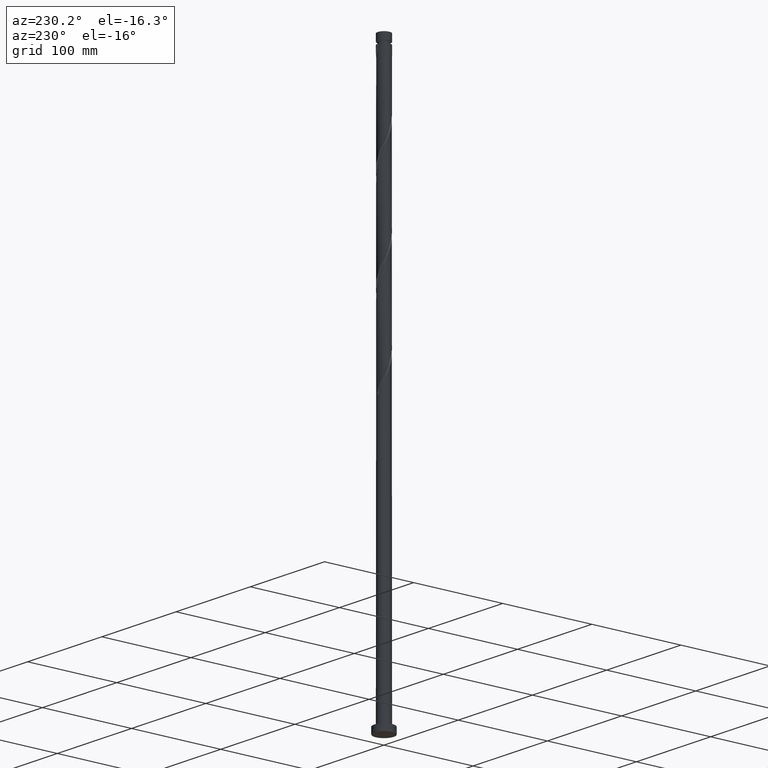
[diagram: clean part render]
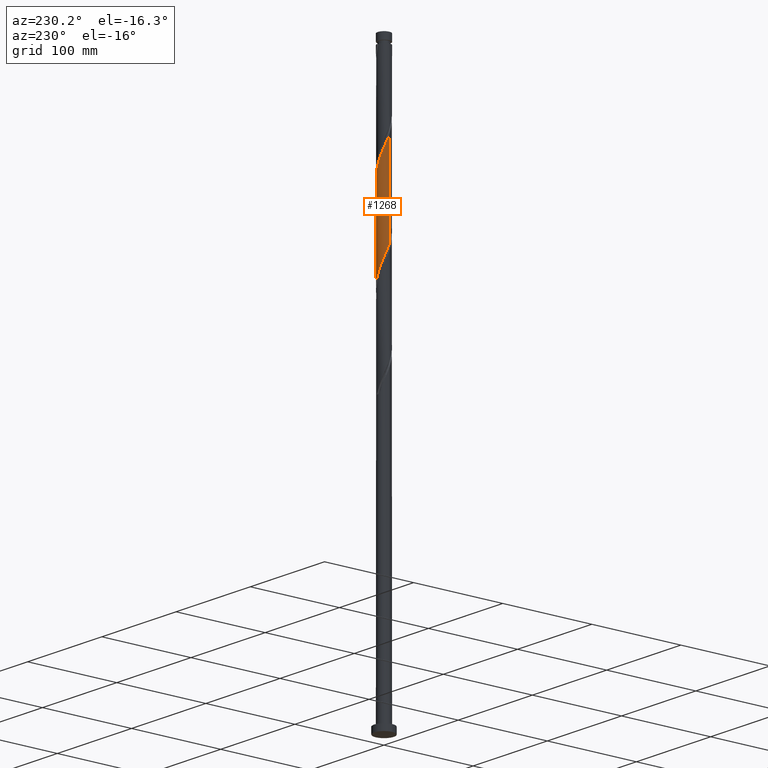
[diagram: same view with one face highlighted and labeled with its STEP entity id]
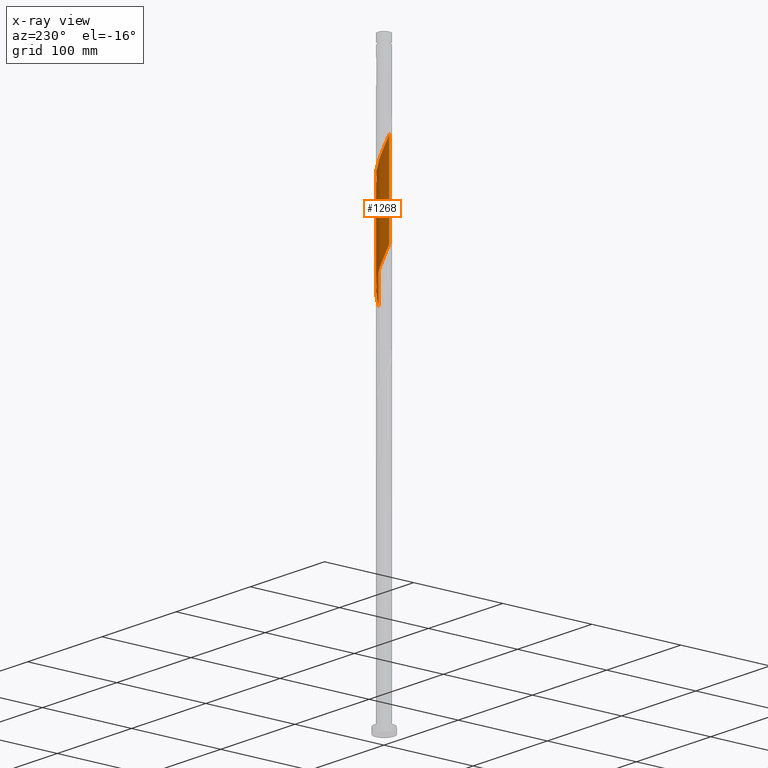
[diagram: x-ray of the same camera — body ghosted, the highlighted face saturated]
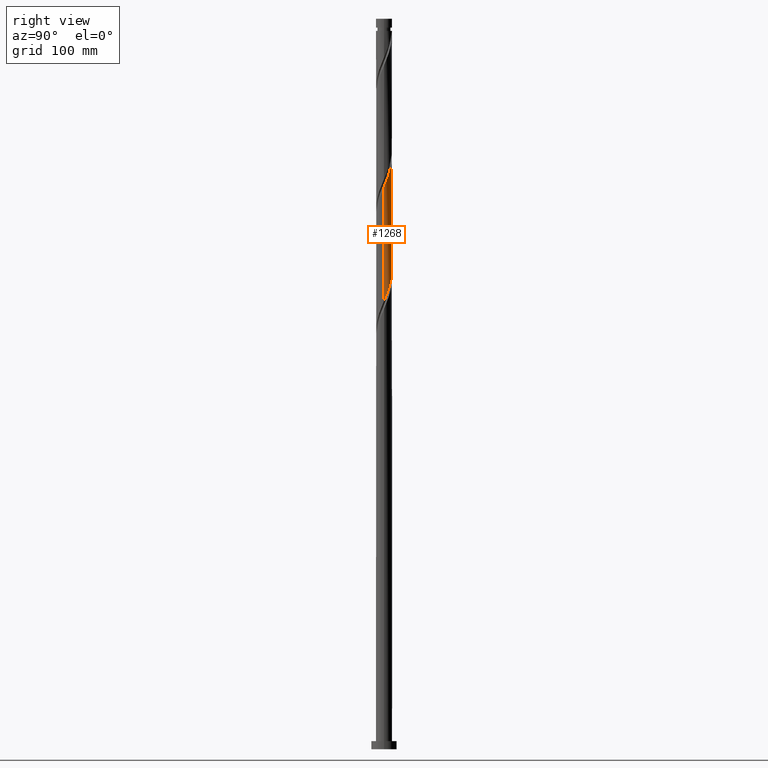
[diagram: same view with one face highlighted and labeled with its STEP entity id]
A machine part, auxiliary view. The second image highlights one B-rep face of the part: STEP entity #1268.
The next image is the same camera in x-ray: the body ghosted, the highlighted face saturated — about 0% of this face is hidden behind the body in this view.
A second angle (right view) of the same face is appended — the face is thin or edge-on in the first view.
In plain terms, the highlighted cylindrical surface (edge-blend (fillet) strip) has radius 7 mm, axis along (-0, -0, -1).
Its self-contained STEP definition (entity closure, byte-faithful):
#4 = CARTESIAN_POINT ( 'NONE',  ( -1.179200414852471956, 6.899962781175834614, 415.6775267457073255 ) ) ;
#85 = CARTESIAN_POINT ( 'NONE',  ( 6.313857628450193715, 3.022449643527795438, 394.0598796868837894 ) ) ;
#100 = CARTESIAN_POINT ( 'NONE',  ( -0.7573097987289503230, 6.989078829442247454, 512.9569385104131243 ) ) ;
#110 = CARTESIAN_POINT ( 'NONE',  ( -3.777035245235269123, 5.893556206251933105, 520.6775267457073824 ) ) ;
#119 = EDGE_CURVE ( 'NONE', #940, #345, #1381, .T. ) ;
#121 = CARTESIAN_POINT ( 'NONE',  ( 6.959264651295738346, 0.7540792486375301751, 486.7069385104132380 ) ) ;
#131 = CARTESIAN_POINT ( 'NONE',  ( 0.5398247046144263317, 7.009231791266186562, 509.8687032162955006 ) ) ;
#162 = CARTESIAN_POINT ( 'NONE',  ( -6.702208247472142055, 2.020001140474032564, 434.2069385104132380 ) ) ;
#172 = CARTESIAN_POINT ( 'NONE',  ( -6.889388918561525799, 1.398950086389860292, 435.7510561574721351 ) ) ;
#211 = CARTESIAN_POINT ( 'NONE',  ( 6.999999999999998224, -6.244394755447724730E-15, 386.5992649321661929 ) ) ;
#248 = CARTESIAN_POINT ( 'NONE',  ( 6.033786423897981699, 3.607514713233049619, 395.6039973339426297 ) ) ;
#263 = CARTESIAN_POINT ( 'NONE',  ( 2.629785931500606466, 6.487235617308922286, 406.4128208633544546 ) ) ;
#274 = CARTESIAN_POINT ( 'NONE',  ( 1.818576125090523465, 6.790693771085499542, 506.7804679221780475 ) ) ;
#284 = CARTESIAN_POINT ( 'NONE',  ( -6.761725868623641666, 1.810818399946830137, 533.0304679221779907 ) ) ;
#296 = CARTESIAN_POINT ( 'NONE',  ( 7.000000000000012434, 5.796232452425122772E-15, 484.9028473827780772 ) ) ;
#308 = CYLINDRICAL_SURFACE ( 'NONE', #1979, 7.000000000000000000 ) ;
#316 = CARTESIAN_POINT ( 'NONE',  ( -2.028655025169599835, 6.730921170557769173, 516.0451738045308048 ) ) ;
#343 = CARTESIAN_POINT ( 'NONE',  ( -4.634938729834690463, 5.245697567595597022, 424.9422326280603102 ) ) ;
#345 = VERTEX_POINT ( 'NONE', #2085 ) ;
#347 = EDGE_CURVE ( 'NONE', #1019, #345, #729, .T. ) ;
#374 = CARTESIAN_POINT ( 'NONE',  ( -6.999999999999998224, -1.353450155128143261E-14, 439.0992649321662498 ) ) ;
#405 = CARTESIAN_POINT ( 'NONE',  ( 4.795662153747904277, 5.099178807132576097, 400.2363502751192073 ) ) ;
#436 = CARTESIAN_POINT ( 'NONE',  ( 6.889388918561535569, 1.398950086389859182, 488.2510561574720214 ) ) ;
#447 = CARTESIAN_POINT ( 'NONE',  ( -6.929522904244872272, 1.184252226071107694, 534.5745855692367741 ) ) ;
#475 = CARTESIAN_POINT ( 'NONE',  ( -6.313857628450200821, 3.022449643527802543, 529.9422326280603102 ) ) ;
#506 = CARTESIAN_POINT ( 'NONE',  ( -6.959264651295729465, 0.7540792486375302861, 437.2951738045309185 ) ) ;
#540 = CARTESIAN_POINT ( 'NONE',  ( -5.121024193531046542, 4.816207244780714269, 426.4863502751191504 ) ) ;
#563 = CARTESIAN_POINT ( 'NONE',  ( 3.777035245235266014, 5.893556206251924223, 403.3245855692367172 ) ) ;
#591 = VECTOR ( 'NONE', #1238, 1000.000000000000000 ) ;
#600 = CARTESIAN_POINT ( 'NONE',  ( 6.979331644137396040, 0.5375219075929518198, 387.8834090986486558 ) ) ;
#611 = CARTESIAN_POINT ( 'NONE',  ( -6.593928833002409284, 2.437384573822551914, 531.4863502751189799 ) ) ;
#633 = CARTESIAN_POINT ( 'NONE',  ( -6.033786423897991469, 3.607514713233053616, 528.3981149810014131 ) ) ;
#665 = CARTESIAN_POINT ( 'NONE',  ( 1.392982411949276189, 6.859999999999998543, 409.5010561574721919 ) ) ;
#683 = CARTESIAN_POINT ( 'NONE',  ( -6.515027576382760977, 2.641052194558206168, 432.6628208633544546 ) ) ;
#729 = LINE ( 'NONE', #1732, #591 ) ;
#763 = CARTESIAN_POINT ( 'NONE',  ( 6.593928833002400403, 2.437384573822548806, 392.5157620398251197 ) ) ;
#774 = CARTESIAN_POINT ( 'NONE',  ( -2.629785931500610907, 6.487235617308932056, 517.5892914515897019 ) ) ;
#787 = DIRECTION ( 'NONE',  ( -0.000000000000000000, -0.000000000000000000, -1.000000000000000000 ) ) ;
#799 = CARTESIAN_POINT ( 'NONE',  ( 3.035398116768321941, 6.340906819069966005, 503.6922326280601396 ) ) ;
#809 = CARTESIAN_POINT ( 'NONE',  ( 4.148853266138341489, 5.675187890410493097, 500.6039973339425728 ) ) ;
#832 = CARTESIAN_POINT ( 'NONE',  ( -0.5398247046144223349, 7.009231791266177680, 414.1334090986485990 ) ) ;
#855 = CARTESIAN_POINT ( 'NONE',  ( -4.148853266138337048, 5.675187890410485103, 423.3981149810015268 ) ) ;
#876 = CARTESIAN_POINT ( 'NONE',  ( -2.426987120929418040, 6.565800295077724336, 418.7657620398251197 ) ) ;
#938 = CARTESIAN_POINT ( 'NONE',  ( 4.323153652638912270, 5.543562348443765941, 401.7804679221781043 ) ) ;
#940 = VERTEX_POINT ( 'NONE', #374 ) ;
#947 = CARTESIAN_POINT ( 'NONE',  ( -1.392982411949273525, 6.860000000000008313, 514.5010561574722487 ) ) ;
#965 = CARTESIAN_POINT ( 'NONE',  ( -4.795662153747906942, 5.099178807132588531, 523.7657620398250629 ) ) ;
#989 = CARTESIAN_POINT ( 'NONE',  ( 3.592125691453331271, 6.008047354740230439, 502.1481149810014131 ) ) ;
#1007 = ORIENTED_EDGE ( 'NONE', *, *, #347, .T. ) ;
#1019 = VERTEX_POINT ( 'NONE', #2095 ) ;
#1041 = CARTESIAN_POINT ( 'NONE',  ( -3.035398116768316168, 6.340906819069959788, 420.3098796868839031 ) ) ;
#1055 = EDGE_LOOP ( 'NONE', ( #1887, #1007, #1921, #1375 ) ) ;
#1071 = EDGE_CURVE ( 'NONE', #1758, #940, #1445, .T. ) ;
#1114 = CARTESIAN_POINT ( 'NONE',  ( 5.918804784004604969, 3.793216437833843102, 494.4275267457073824 ) ) ;
#1132 = CARTESIAN_POINT ( 'NONE',  ( -7.000000000000000000, 0.000000000000000000, 630.0000000000000000 ) ) ;
#1192 = CARTESIAN_POINT ( 'NONE',  ( -5.918804784004594310, 3.793216437833842214, 429.5745855692367741 ) ) ;
#1203 = CARTESIAN_POINT ( 'NONE',  ( -6.999999999999998224, -1.353450155128143261E-14, 439.0992649321662498 ) ) ;
#1210 = CARTESIAN_POINT ( 'NONE',  ( -7.000000000000009770, -1.105467014122317242E-14, 537.4028473827780772 ) ) ;
#1211 = EDGE_CURVE ( 'NONE', #1019, #1758, #1973, .T. ) ;
#1226 = CARTESIAN_POINT ( 'NONE',  ( 3.230916837831619315, 6.243550064060082505, 404.8687032162956712 ) ) ;
#1238 = DIRECTION ( 'NONE',  ( -0.000000000000000000, -0.000000000000000000, -1.000000000000000000 ) ) ;
#1253 = CARTESIAN_POINT ( 'NONE',  ( 6.929522904244864279, 1.184252226071101921, 389.4275267457074392 ) ) ;
#1268 = ADVANCED_FACE ( 'NONE', ( #1637 ), #308, .T. ) ;
#1274 = CARTESIAN_POINT ( 'NONE',  ( 7.000000000000010658, 0.3781398857548513015, 485.8067666147906607 ) ) ;
#1285 = CARTESIAN_POINT ( 'NONE',  ( 2.426987120929425146, 6.565800295077732329, 505.2363502751191504 ) ) ;
#1306 = CARTESIAN_POINT ( 'NONE',  ( -6.979331644137407586, 0.5375219075929535961, 536.1187032162956712 ) ) ;
#1320 = CARTESIAN_POINT ( 'NONE',  ( -0.1087425470572647851, 6.999155310354217008, 511.4128208633545114 ) ) ;
#1375 = ORIENTED_EDGE ( 'NONE', *, *, #1071, .F. ) ;
#1381 =( BOUNDED_CURVE ( )  B_SPLINE_CURVE ( 2, ( #1203, #1853, #506, #172, #162, #683, #1522, #1192, #1885, #540, #343, #855, #1532, #1041, #876, #2034, #4, #832, #2175, #1897, #665, #1425, #263, #1226, #563, #938, #405, #1446, #1615, #248, #85, #763, #2097, #1253, #600, #2119, #211 ),
 .UNSPECIFIED., .F., .T. ) 
 B_SPLINE_CURVE_WITH_KNOTS ( ( 3, 2, 2, 2, 2, 2, 2, 2, 2, 2, 2, 2, 2, 2, 2, 2, 2, 2, 3 ),
 ( 0.6795293573162902723, 0.6838235294117647189, 0.6911764705882352811, 0.6985294117647058432, 0.7058823529411765163, 0.7132352941176470784, 0.7205882352941176405, 0.7279411764705882026, 0.7352941176470588758, 0.7426470588235294379, 0.7500000000000000000, 0.7573529411764705621, 0.7647058823529411242, 0.7720588235294117974, 0.7794117647058823595, 0.7867647058823529216, 0.7941176470588234837, 0.8014705882352941568, 0.8045293573162904943 ),
 .UNSPECIFIED. ) 
 CURVE ( )  GEOMETRIC_REPRESENTATION_ITEM ( )  RATIONAL_B_SPLINE_CURVE ( ( 0.9072066346053069275, 0.9068261157890739055, 0.9090909090909453649, 0.9052128875409765074, 0.9090909090909453649, 0.9052128875409765074, 0.9090909090909453649, 0.9052128875409765074, 0.9090909090909453649, 0.9052128875409765074, 0.9090909090909453649, 0.9052128875409765074, 0.9090909090909453649, 0.9052128875409765074, 0.9090909090909453649, 0.9052128875409765074, 0.9090909090909453649, 0.9052128875409765074, 0.9090909090909453649, 0.9052128875409765074, 0.9090909090909453649, 0.9052128875409765074, 0.9090909090909453649, 0.9052128875409765074, 0.9090909090909453649, 0.9052128875409765074, 0.9090909090909453649, 0.9052128875409765074, 0.9090909090909453649, 0.9052128875409765074, 0.9090909090909453649, 0.9052128875409765074, 0.9090909090909453649, 0.9052128875409765074, 0.9090909090909453649, 0.9074776808428477448, 0.9072066346053069275 ) ) 
 REPRESENTATION_ITEM ( '' )  );
#1422 = VECTOR ( 'NONE', #1969, 1000.000000000000000 ) ;
#1425 = CARTESIAN_POINT ( 'NONE',  ( 2.028655025169599391, 6.730921170557762956, 407.9569385104132380 ) ) ;
#1445 = LINE ( 'NONE', #1132, #1422 ) ;
#1446 = CARTESIAN_POINT ( 'NONE',  ( 5.268170654856889179, 4.654795265821392469, 398.6922326280603102 ) ) ;
#1456 = CARTESIAN_POINT ( 'NONE',  ( -4.323153652638917599, 5.543562348443775711, 522.2216443927661658 ) ) ;
#1476 = CARTESIAN_POINT ( 'NONE',  ( -3.230916837831620647, 6.243550064060092275, 519.1334090986485990 ) ) ;
#1486 = CARTESIAN_POINT ( 'NONE',  ( -7.000000000000007994, 0.2691583152137947410, 536.7594416307182428 ) ) ;
#1522 = CARTESIAN_POINT ( 'NONE',  ( -6.216916180193678088, 3.217134316196022858, 431.1187032162956143 ) ) ;
#1532 = CARTESIAN_POINT ( 'NONE',  ( -3.592125691453326830, 6.008047354740221557, 421.8539973339426297 ) ) ;
#1615 = CARTESIAN_POINT ( 'NONE',  ( 5.650978539377437215, 4.131154989527222376, 397.1481149810015268 ) ) ;
#1625 = CARTESIAN_POINT ( 'NONE',  ( 6.702208247472153602, 2.020001140474031676, 489.7951738045309185 ) ) ;
#1637 = FACE_OUTER_BOUND ( 'NONE', #1055, .T. ) ;
#1648 = CARTESIAN_POINT ( 'NONE',  ( 6.515027576382768970, 2.641052194558210164, 491.3392914515897019 ) ) ;
#1666 = CARTESIAN_POINT ( 'NONE',  ( 1.179200414852475287, 6.899962781175845272, 508.3245855692367741 ) ) ;
#1732 = CARTESIAN_POINT ( 'NONE',  ( 7.000000000000000000, 8.572527594031473190E-16, 630.0000000000000000 ) ) ;
#1758 = VERTEX_POINT ( 'NONE', #1210 ) ;
#1797 = CARTESIAN_POINT ( 'NONE',  ( 6.216916180193686969, 3.217134316196026855, 492.8834090986485421 ) ) ;
#1820 = CARTESIAN_POINT ( 'NONE',  ( 5.519914488767827088, 4.304711841307285347, 495.9716443927661089 ) ) ;
#1831 = CARTESIAN_POINT ( 'NONE',  ( 0.000000000000000000, 0.000000000000000000, 630.0000000000000000 ) ) ;
#1853 = CARTESIAN_POINT ( 'NONE',  ( -7.000000000000002665, 0.3781398857548354808, 438.1953457001535526 ) ) ;
#1885 = CARTESIAN_POINT ( 'NONE',  ( -5.519914488767819982, 4.304711841307277354, 428.0304679221779907 ) ) ;
#1887 = ORIENTED_EDGE ( 'NONE', *, *, #1211, .F. ) ;
#1897 = CARTESIAN_POINT ( 'NONE',  ( 0.7573097987289503230, 6.989078829442237684, 411.0451738045309753 ) ) ;
#1921 = ORIENTED_EDGE ( 'NONE', *, *, #119, .F. ) ;
#1961 = CARTESIAN_POINT ( 'NONE',  ( 5.121024193531053648, 4.816207244780719599, 497.5157620398249492 ) ) ;
#1969 = DIRECTION ( 'NONE',  ( -0.000000000000000000, -0.000000000000000000, -1.000000000000000000 ) ) ;
#1973 =( BOUNDED_CURVE ( )  B_SPLINE_CURVE ( 2, ( #296, #1274, #121, #436, #1625, #1648, #1797, #1114, #1820, #1961, #1991, #809, #989, #799, #1285, #274, #1666, #131, #1320, #100, #947, #316, #774, #1476, #110, #1456, #965, #2129, #2147, #633, #475, #611, #284, #447, #1306, #1486, #1978 ),
 .UNSPECIFIED., .F., .T. ) 
 B_SPLINE_CURVE_WITH_KNOTS ( ( 3, 2, 2, 2, 2, 2, 2, 2, 2, 2, 2, 2, 2, 2, 2, 2, 2, 2, 3 ),
 ( 0.4295293573162904388, 0.4338235294117647189, 0.4411764705882352811, 0.4485294117647058432, 0.4558823529411765163, 0.4632352941176470784, 0.4705882352941176405, 0.4779411764705882026, 0.4852941176470588758, 0.4926470588235294379, 0.5000000000000000000, 0.5073529411764705621, 0.5147058823529411242, 0.5220588235294116863, 0.5294117647058823595, 0.5367647058823529216, 0.5441176470588235947, 0.5514705882352941568, 0.5545293573162902723 ),
 .UNSPECIFIED. ) 
 CURVE ( )  GEOMETRIC_REPRESENTATION_ITEM ( )  RATIONAL_B_SPLINE_CURVE ( ( 0.9072066346053129227, 0.9068261157890801227, 0.9090909090909514711, 0.9052128875409826136, 0.9090909090909514711, 0.9052128875409826136, 0.9090909090909514711, 0.9052128875409826136, 0.9090909090909514711, 0.9052128875409826136, 0.9090909090909514711, 0.9052128875409826136, 0.9090909090909514711, 0.9052128875409826136, 0.9090909090909514711, 0.9052128875409826136, 0.9090909090909514711, 0.9052128875409826136, 0.9090909090909514711, 0.9052128875409826136, 0.9090909090909514711, 0.9052128875409826136, 0.9090909090909514711, 0.9052128875409826136, 0.9090909090909514711, 0.9052128875409826136, 0.9090909090909514711, 0.9052128875409826136, 0.9090909090909514711, 0.9052128875409826136, 0.9090909090909514711, 0.9052128875409826136, 0.9090909090909514711, 0.9052128875409826136, 0.9090909090909514711, 0.9074776808428539621, 0.9072066346053130337 ) ) 
 REPRESENTATION_ITEM ( '' )  );
#1978 = CARTESIAN_POINT ( 'NONE',  ( -7.000000000000009770, -1.105467014122317400E-14, 537.4028473827780772 ) ) ;
#1979 = AXIS2_PLACEMENT_3D ( 'NONE', #1831, #787, #2138 ) ;
#1991 = CARTESIAN_POINT ( 'NONE',  ( 4.634938729834701121, 5.245697567595602351, 499.0598796868838463 ) ) ;
#2034 = CARTESIAN_POINT ( 'NONE',  ( -1.818576125090521911, 6.790693771085488883, 417.2216443927662795 ) ) ;
#2085 = CARTESIAN_POINT ( 'NONE',  ( 6.999999999999998224, -6.244394755447724730E-15, 386.5992649321661929 ) ) ;
#2095 = CARTESIAN_POINT ( 'NONE',  ( 7.000000000000011546, 5.796232452425122772E-15, 484.9028473827780772 ) ) ;
#2097 = CARTESIAN_POINT ( 'NONE',  ( 6.761725868623631897, 1.810818399946827917, 390.9716443927662795 ) ) ;
#2119 = CARTESIAN_POINT ( 'NONE',  ( 6.999999999999998224, 0.2691583152137743684, 387.2426706842258568 ) ) ;
#2129 = CARTESIAN_POINT ( 'NONE',  ( -5.268170654856897173, 4.654795265821399575, 525.3098796868837326 ) ) ;
#2138 = DIRECTION ( 'NONE',  ( -1.000000000000000000, 0.000000000000000000, 0.000000000000000000 ) ) ;
#2147 = CARTESIAN_POINT ( 'NONE',  ( -5.650978539377443433, 4.131154989527226817, 526.8539973339425160 ) ) ;
#2175 = CARTESIAN_POINT ( 'NONE',  ( 0.1087425470572637026, 6.999155310354205461, 412.5892914515897587 ) ) ;